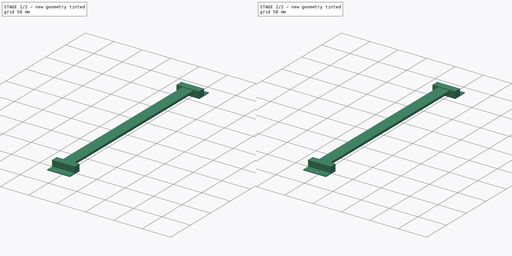
[diagram: build sequence overview — one tinted view per stage of 2, left to right]
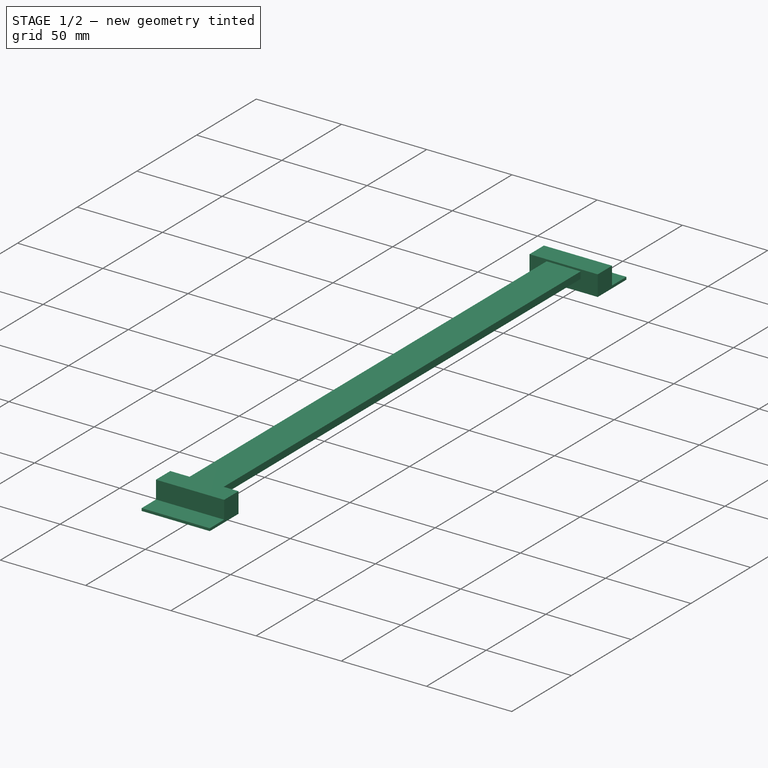
[diagram: stage 1 of 2 — iso view after this stage's code; geometry added in this stage tinted green]
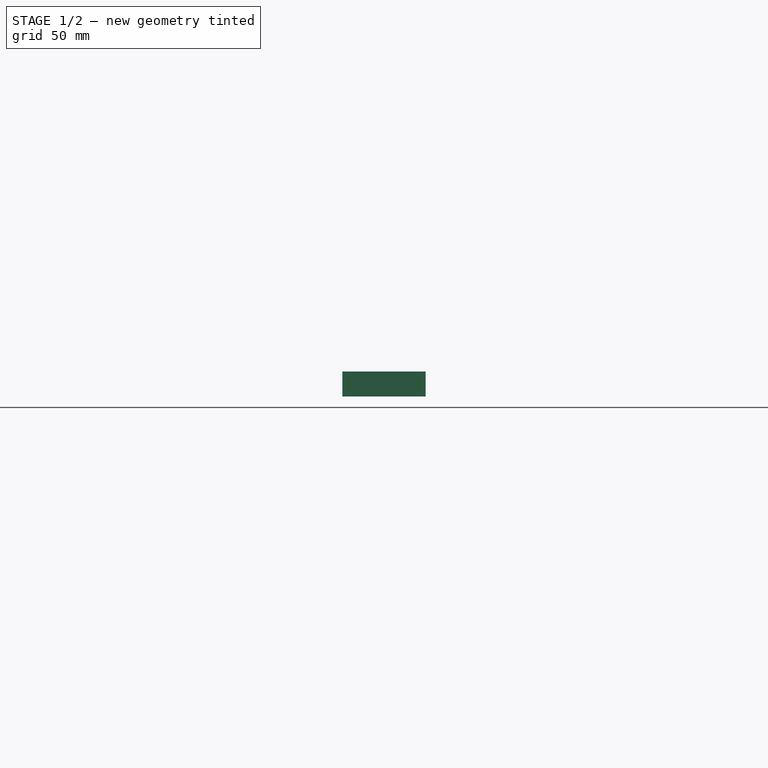
[diagram: stage 1 of 2 — front view after this stage's code; geometry added in this stage tinted green]
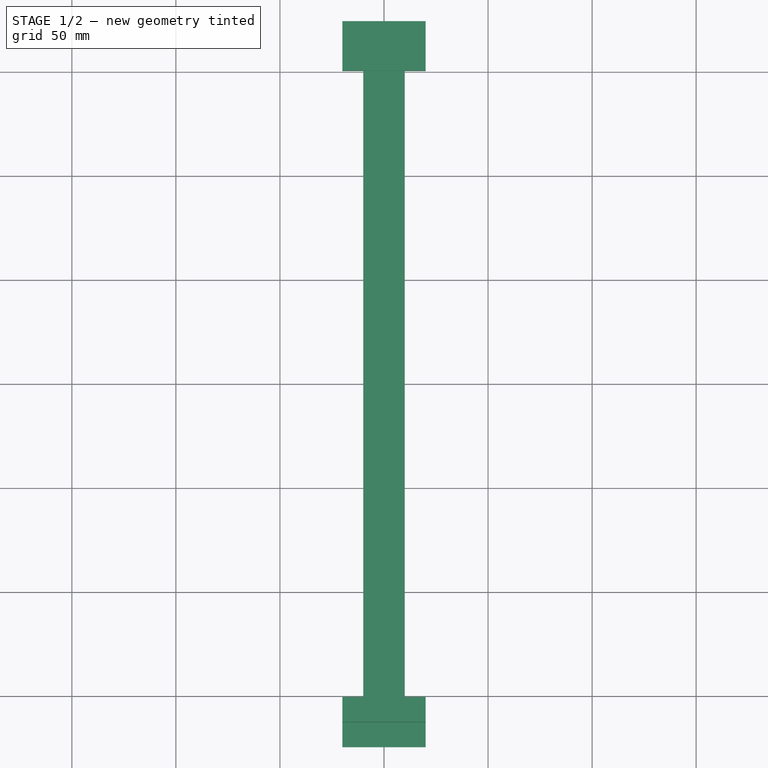
[diagram: stage 1 of 2 — top view after this stage's code; geometry added in this stage tinted green]
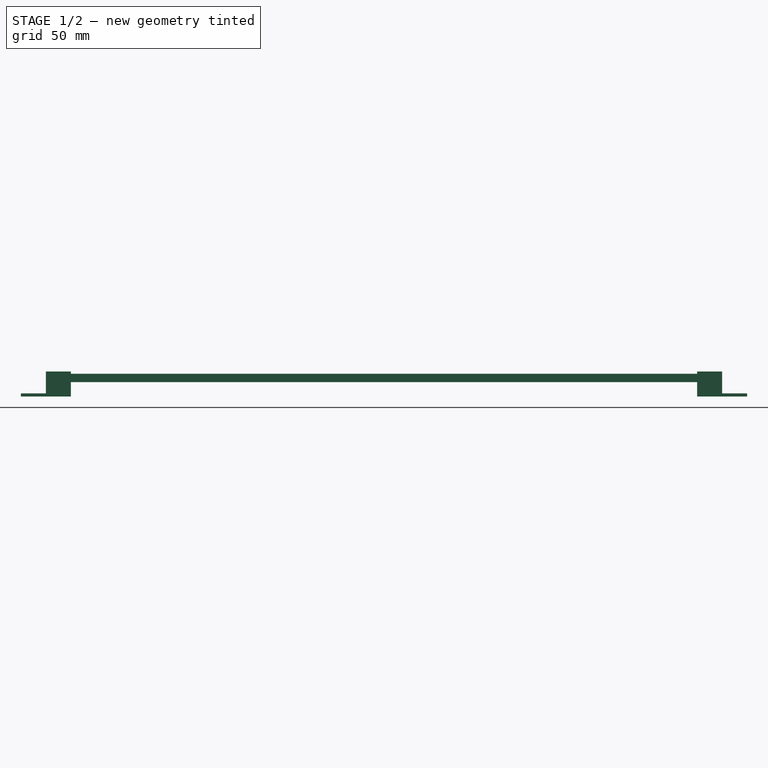
[diagram: stage 1 of 2 — right view after this stage's code; geometry added in this stage tinted green]
FCSTD DOCUMENT  (FreeCAD 0.19R24267 +99 (Git))
Label: Linear scale rail
License: All rights reserved
LicenseURL: http://en.wikipedia.org/wiki/All_rights_reserved
objects: Sketcher::SketchObject×3, PartDesign::Pad×2, PartDesign::Pocket×1, PartDesign::Body×1
note: 10 computed .brp shape members not serialized (recipe doc carries the construction recipe); baked Part::Feature solids carry a one-line shape summary decoded from their .brp

FEATURE [Sketcher::SketchObject] Sketch  label="Rail cross section"
  FullyConstrained = true
  MapMode = 5
  Placement = pos=(0,0,0) rot=(1,0,0;1.5708rad)
  Support = -> [XZ_Plane]
  sketch-geometry (4):
    g0: LineSegment StartX=-10 StartY=10.9 StartZ=0 EndX=10 EndY=10.9 EndZ=0
    g1: LineSegment StartX=10 StartY=10.9 StartZ=0 EndX=10 EndY=6.9 EndZ=0
    g2: LineSegment StartX=10 StartY=6.9 StartZ=0 EndX=-10 EndY=6.9 EndZ=0
    g3: LineSegment StartX=-10 StartY=6.9 StartZ=0 EndX=-10 EndY=10.9 EndZ=0
  constraints (11):
    c: Coincident(g0,g1)
    c: Coincident(g1,g2)
    c: Coincident(g2,g3)
    c: Coincident(g3,g0)
    c: Horizontal(g2)
    c: Vertical(g1)
    c: Vertical(g3)
    c: DistanceY(g2,g0) = 4
    c: Symmetric(g0,g0,g-2)
    c: DistanceX(g0,g0) = 20
    c: DistanceY(g-1,g2) = 6.9
FEATURE [PartDesign::Pad] Pad  label="Rail length"
  Direction = (1,1,1)
  Length = 325
  Length2 = 100
  Midplane = true
  Placement = pos=(0,0,0) rot=(1,0,0;1.5708rad)
  Profile = -> Sketch
  Type = 0
FEATURE [Sketcher::SketchObject] Sketch001  label="End bracket sketch"
  FullyConstrained = true
  MapMode = 5
  Placement = pos=(0,0,0) rot=(0.57735,0.57735,0.57735;2.0944rad)
  Support = -> [YZ_Plane]
  sketch-geometry (12):
    g0: LineSegment StartX=150.5 StartY=12 StartZ=0 EndX=150.5 EndY=0 EndZ=0
    g1: LineSegment StartX=150.5 StartY=0 StartZ=0 EndX=174.5 EndY=0 EndZ=0
    g2: LineSegment StartX=174.5 StartY=0 StartZ=0 EndX=174.5 EndY=1.5 EndZ=0
    g3: LineSegment StartX=174.5 StartY=1.5 StartZ=0 EndX=162.5 EndY=1.5 EndZ=0
    g4: LineSegment StartX=162.5 StartY=1.5 StartZ=0 EndX=162.5 EndY=12 EndZ=0
    g5: LineSegment StartX=162.5 StartY=12 StartZ=0 EndX=150.5 EndY=12 EndZ=0
    g6: LineSegment StartX=-162.5 StartY=12 StartZ=0 EndX=-162.5 EndY=1.5 EndZ=0
    g7: LineSegment StartX=-162.5 StartY=1.5 StartZ=0 EndX=-174.5 EndY=1.5 EndZ=0
    g8: LineSegment StartX=-174.5 StartY=1.5 StartZ=0 EndX=-174.5 EndY=0 EndZ=0
    g9: LineSegment StartX=-174.5 StartY=0 StartZ=0 EndX=-150.5 EndY=0 EndZ=0
    g10: LineSegment StartX=-150.5 StartY=0 StartZ=0 EndX=-150.5 EndY=12 EndZ=0
    g11: LineSegment StartX=-150.5 StartY=12 StartZ=0 EndX=-162.5 EndY=12 EndZ=0
  constraints (34):
    c: Vertical(g0)
    c: Coincident(g1,g0)
    c: PointOnObject(g1,g-1)
    c: Horizontal(g1)
    c: Coincident(g2,g1)
    c: Coincident(g3,g2)
    c: Horizontal(g3)
    c: Coincident(g4,g3)
    c: Vertical(g4)
    c: Coincident(g5,g4)
    c: Coincident(g5,g0)
    c: Horizontal(g5)
    c: Vertical(g2)
    c: Equal(g5,g3)
    c: DistanceX(g5,g5) = 12
    c: DistanceY(g2,g2) = 1.5
    c: DistanceY(g0,g0) = 12
    c: Vertical(g6)
    c: Coincident(g7,g6)
    c: Horizontal(g7)
    c: Coincident(g8,g7)
    c: PointOnObject(g8,g-1)
    c: Vertical(g8)
    c: Coincident(g9,g8)
    c: PointOnObject(g9,g-1)
    c: Coincident(g10,g9)
    c: Vertical(g10)
    c: Coincident(g11,g10)
    c: Coincident(g11,g6)
    c: Horizontal(g11)
    c: Equal(g11,g7)
    c: Symmetric(g2,g7,g-2)
    c: Symmetric(g10,g0,g-2)
    c: DistanceX(g6,g4) = 325
FEATURE [PartDesign::Pad] Pad001  label="End bracket width"
  BaseFeature = -> Pad
  Direction = (1,1,1)
  Length = 40
  Length2 = 100
  Midplane = true
  Placement = pos=(0,0,0) rot=(1,0,0;1.5708rad)
  Profile = -> Sketch001
  Type = 0
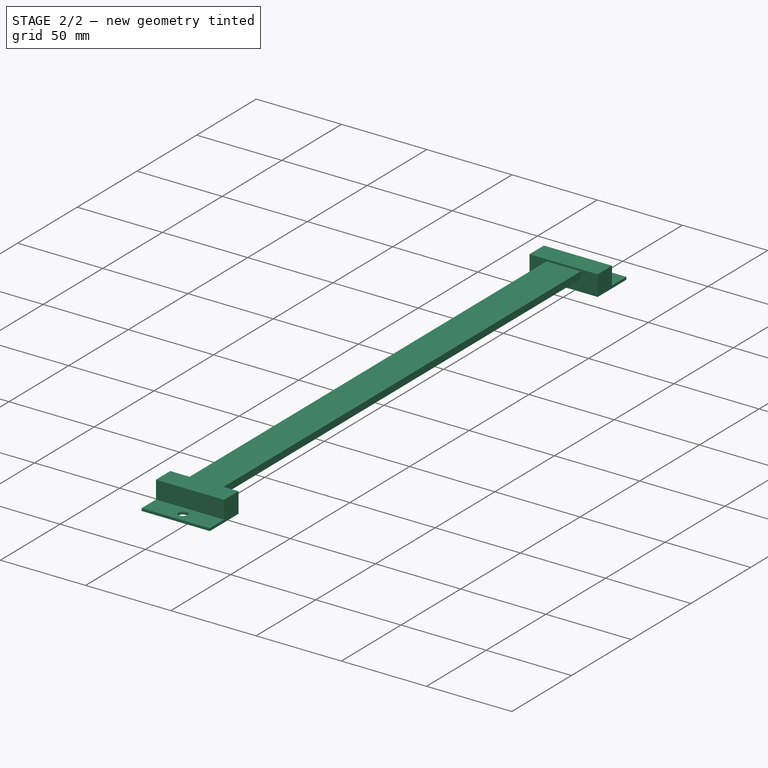
[diagram: stage 2 of 2 — iso view after this stage's code; geometry added in this stage tinted green]
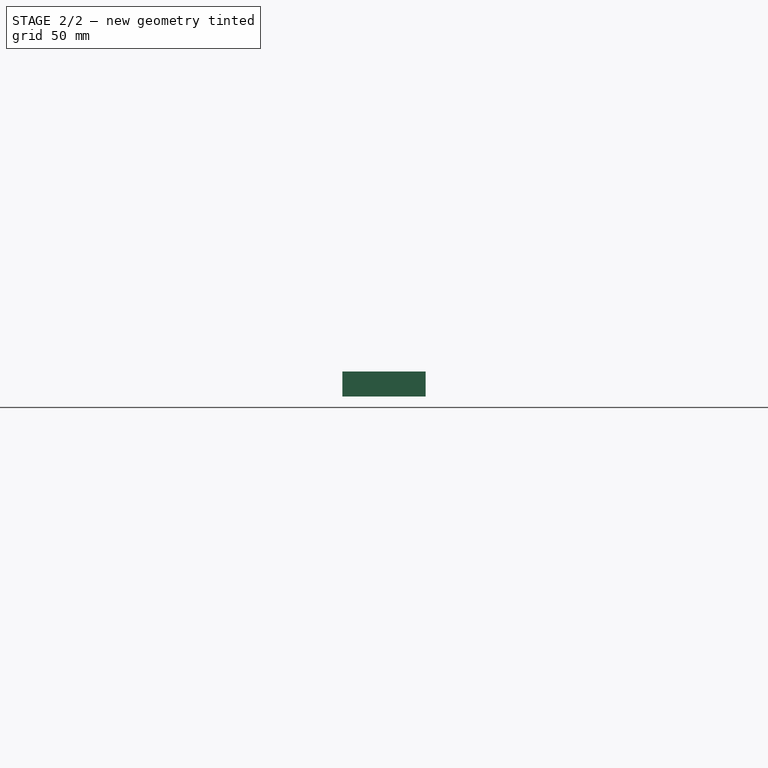
[diagram: stage 2 of 2 — front view after this stage's code; geometry added in this stage tinted green]
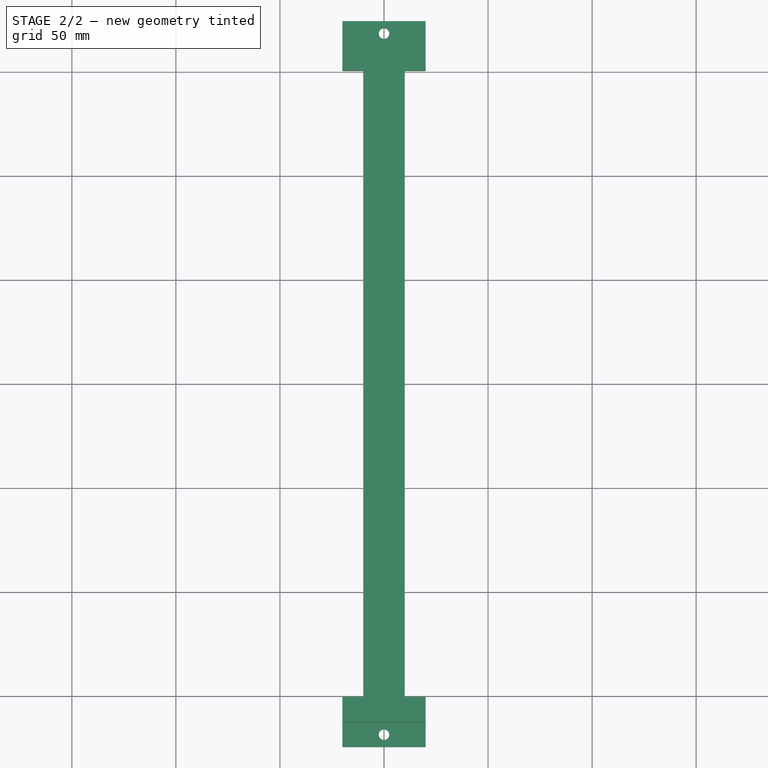
[diagram: stage 2 of 2 — top view after this stage's code; geometry added in this stage tinted green]
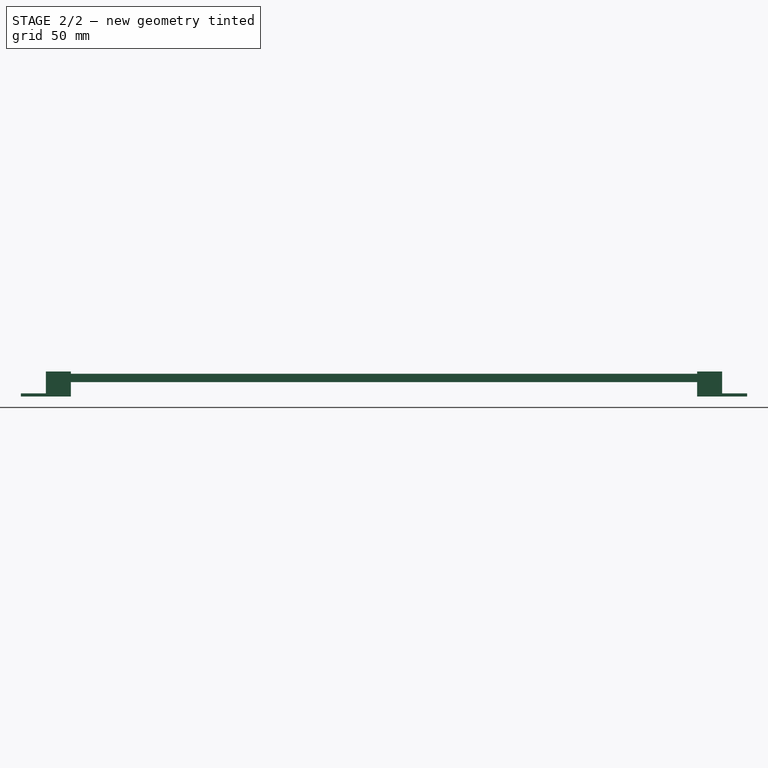
[diagram: stage 2 of 2 — right view after this stage's code; geometry added in this stage tinted green]
FEATURE [Sketcher::SketchObject] Sketch002  label="Mount holes sketch"
  FullyConstrained = true
  MapMode = 5
  Support = -> [XY_Plane]
  sketch-geometry (2):
    g0: Circle CenterX=0 CenterY=-168.5 CenterZ=0 NormalX=0 NormalY=0 NormalZ=1 AngleXU=0 Radius=2.5
    g1: Circle CenterX=0 CenterY=168.5 CenterZ=0 NormalX=0 NormalY=0 NormalZ=1 AngleXU=0 Radius=2.5
  constraints (5):
    c: PointOnObject(g1,g-2)
    c: Symmetric(g1,g0,g-1)
    c: Equal(g1,g0)
    c: Diameter(g1) = 5
    c: DistanceY(g0,g1) = 337
FEATURE [PartDesign::Pocket] Pocket  label="Mount holes"
  BaseFeature = -> Pad001
  Length = 5
  Length2 = 100
  Midplane = true
  Placement = pos=(0,0,0) rot=(1,0,0;1.5708rad)
  Profile = -> Sketch002
  Type = 1
FEATURE [PartDesign::Body] Body
  Group = -> [Sketch,Pad,Sketch001,Pad001,Sketch002,Pocket]
  Origin = -> Origin
  Tip = -> Pocket
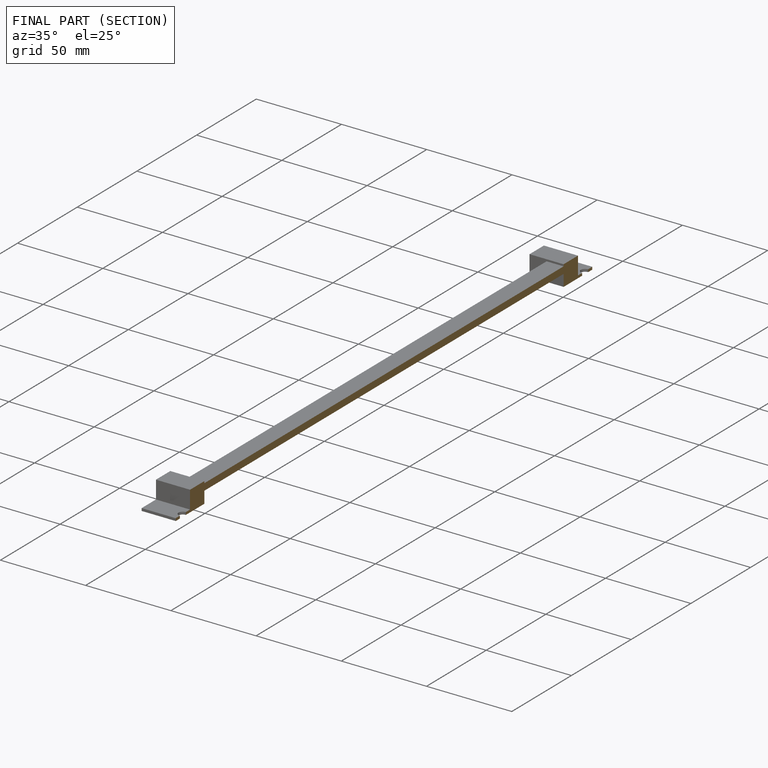
[diagram: finished part — half-section view (interior)]
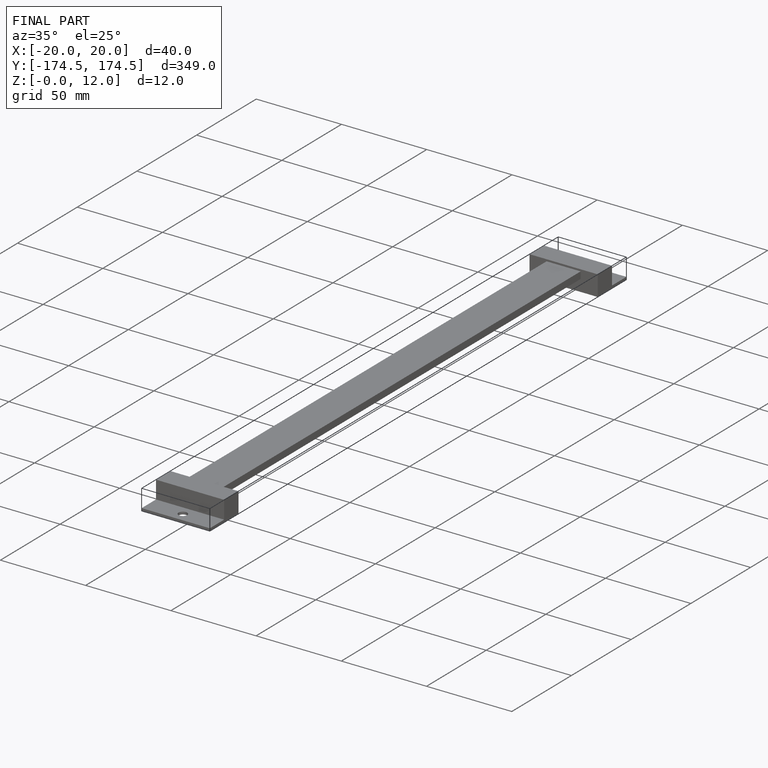
[diagram: finished part — iso view with bounding-box wireframe]
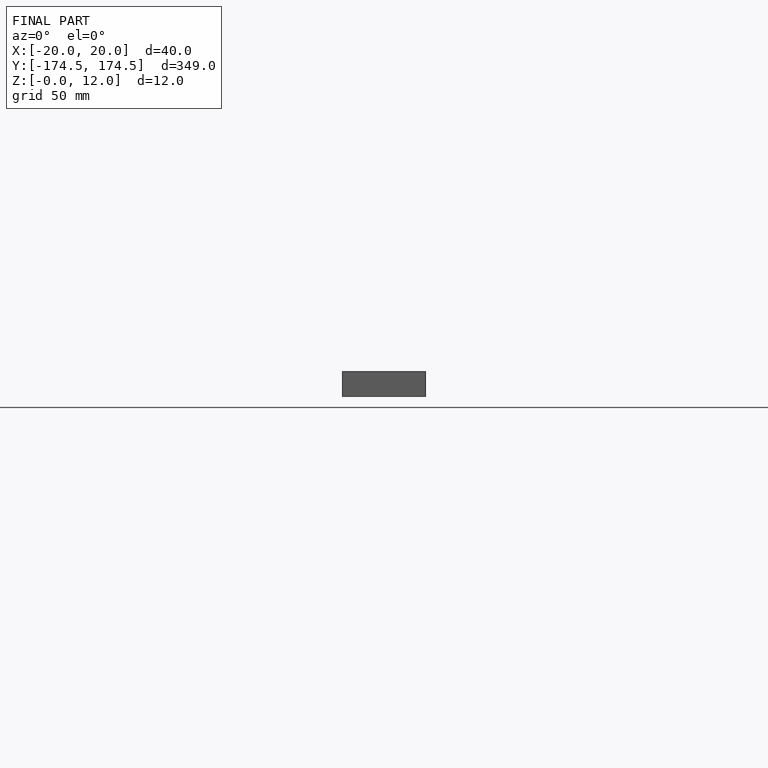
[diagram: finished part — front view with bounding-box wireframe]
